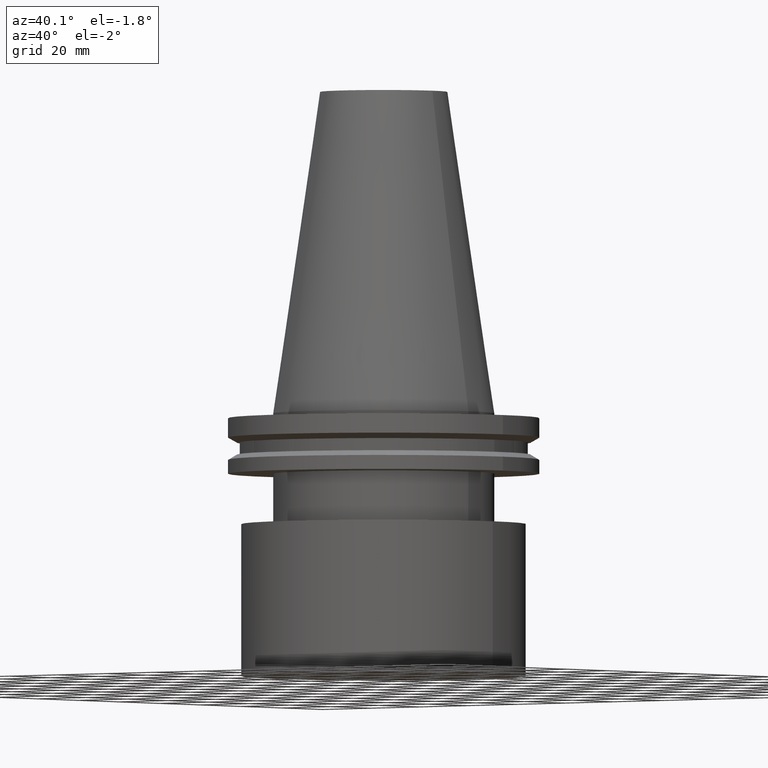
[diagram: clean part render]
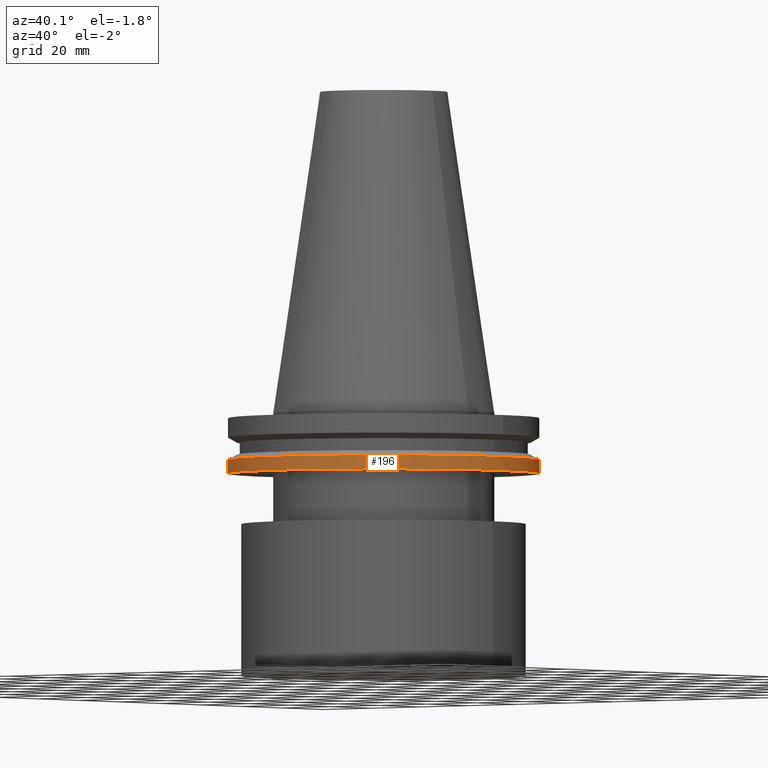
[diagram: same view with one face highlighted and labeled with its STEP entity id]
A machine part, auxiliary view. The second image highlights one B-rep face of the part: STEP entity #196.
In plain terms, the highlighted cylindrical surface (bore or boss wall) has radius 49.215 mm, axis along (-0, -0, 1).
Its self-contained STEP definition (entity closure, byte-faithful):
#3 = CARTESIAN_POINT ( 'NONE',  ( 0.000000000000000000, 0.000000000000000000, -14.65761014474876944 ) ) ;
#8 = EDGE_LOOP ( 'NONE', ( #172 ) ) ;
#12 = DIRECTION ( 'NONE',  ( -0.000000000000000000, -0.000000000000000000, 1.000000000000000000 ) ) ;
#14 = DIRECTION ( 'NONE',  ( 1.000000000000000000, 0.000000000000000000, 0.000000000000000000 ) ) ;
#68 = FACE_OUTER_BOUND ( 'NONE', #115, .T. ) ;
#82 = EDGE_CURVE ( 'NONE', #123, #123, #260, .T. ) ;
#96 = AXIS2_PLACEMENT_3D ( 'NONE', #3, #12, #345 ) ;
#115 = EDGE_LOOP ( 'NONE', ( #314 ) ) ;
#123 = VERTEX_POINT ( 'NONE', #332 ) ;
#138 = CIRCLE ( 'NONE', #96, 49.21499999999998920 ) ;
#144 = CARTESIAN_POINT ( 'NONE',  ( 49.21499999999998920, 0.000000000000000000, -14.65761014474876944 ) ) ;
#153 = DIRECTION ( 'NONE',  ( -0.000000000000000000, -0.000000000000000000, 1.000000000000000000 ) ) ;
#161 = AXIS2_PLACEMENT_3D ( 'NONE', #257, #374, #14 ) ;
#172 = ORIENTED_EDGE ( 'NONE', *, *, #224, .F. ) ;
#177 = DIRECTION ( 'NONE',  ( 1.000000000000000000, 0.000000000000000000, 0.000000000000000000 ) ) ;
#196 = ADVANCED_FACE ( 'NONE', ( #369, #68 ), #287, .T. ) ;
#224 = EDGE_CURVE ( 'NONE', #359, #359, #138, .T. ) ;
#257 = CARTESIAN_POINT ( 'NONE',  ( 0.000000000000000000, 0.000000000000000000, 101.5999999999999943 ) ) ;
#260 = CIRCLE ( 'NONE', #279, 49.21499999999998920 ) ;
#279 = AXIS2_PLACEMENT_3D ( 'NONE', #294, #153, #177 ) ;
#287 = CYLINDRICAL_SURFACE ( 'NONE', #161, 49.21499999999998920 ) ;
#294 = CARTESIAN_POINT ( 'NONE',  ( 0.000000000000000000, 0.000000000000000000, -19.04999999999999716 ) ) ;
#314 = ORIENTED_EDGE ( 'NONE', *, *, #82, .T. ) ;
#332 = CARTESIAN_POINT ( 'NONE',  ( 49.21499999999998920, 0.000000000000000000, -19.04999999999999716 ) ) ;
#345 = DIRECTION ( 'NONE',  ( 1.000000000000000000, 0.000000000000000000, 0.000000000000000000 ) ) ;
#359 = VERTEX_POINT ( 'NONE', #144 ) ;
#369 = FACE_OUTER_BOUND ( 'NONE', #8, .T. ) ;
#374 = DIRECTION ( 'NONE',  ( -0.000000000000000000, -0.000000000000000000, 1.000000000000000000 ) ) ;